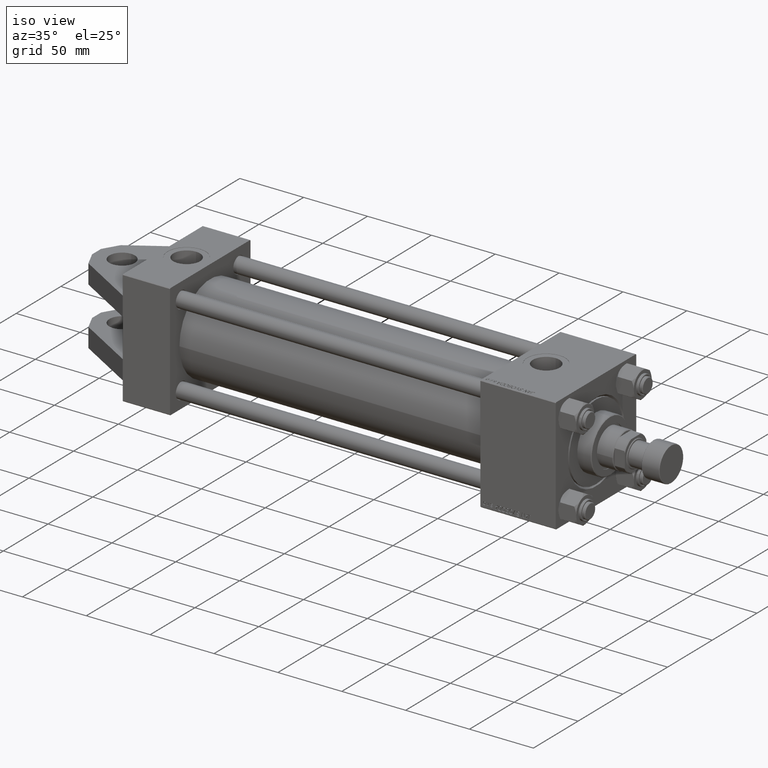
[diagram: clean part render]
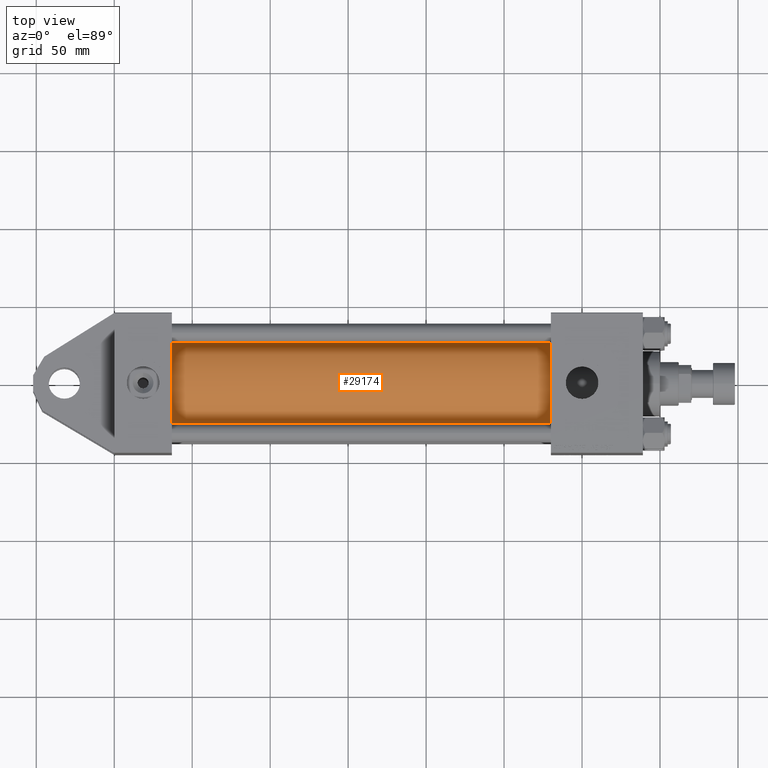
[diagram: tour spotlight — one face highlighted and labeled with its STEP entity id]
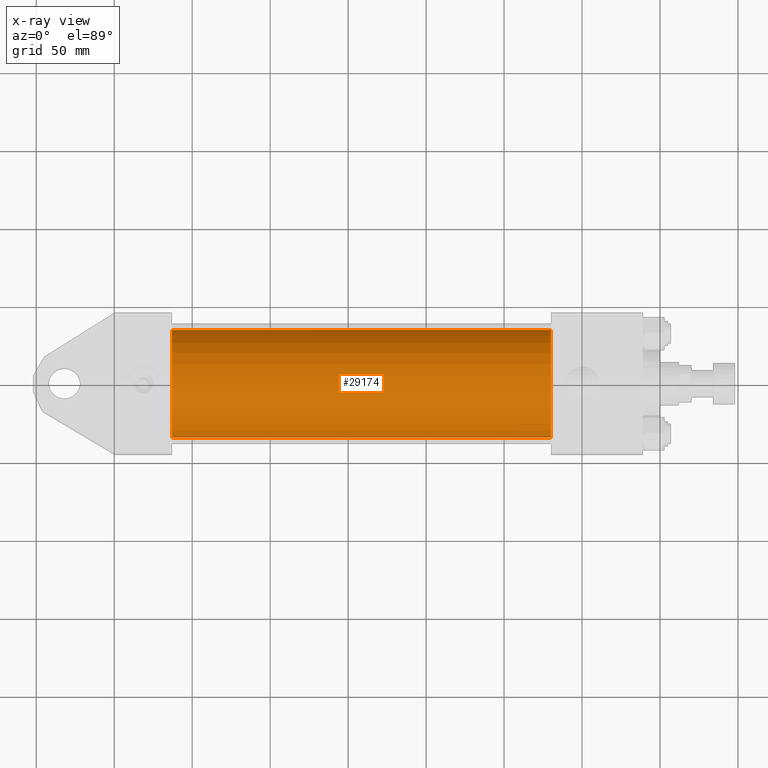
[diagram: x-ray of the same camera — body ghosted, this tour face saturated]
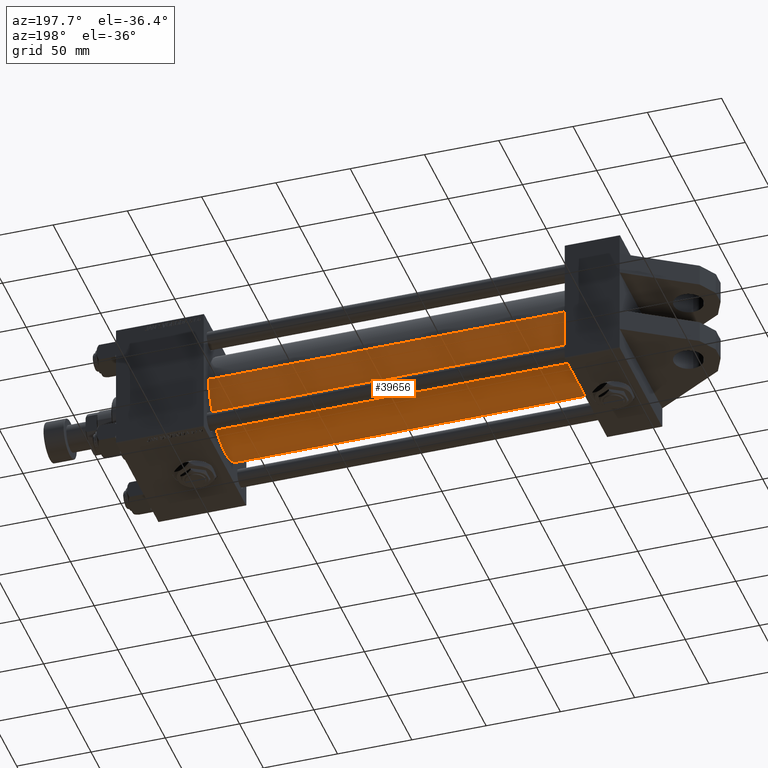
[diagram: tour spotlight — one face highlighted and labeled with its STEP entity id]
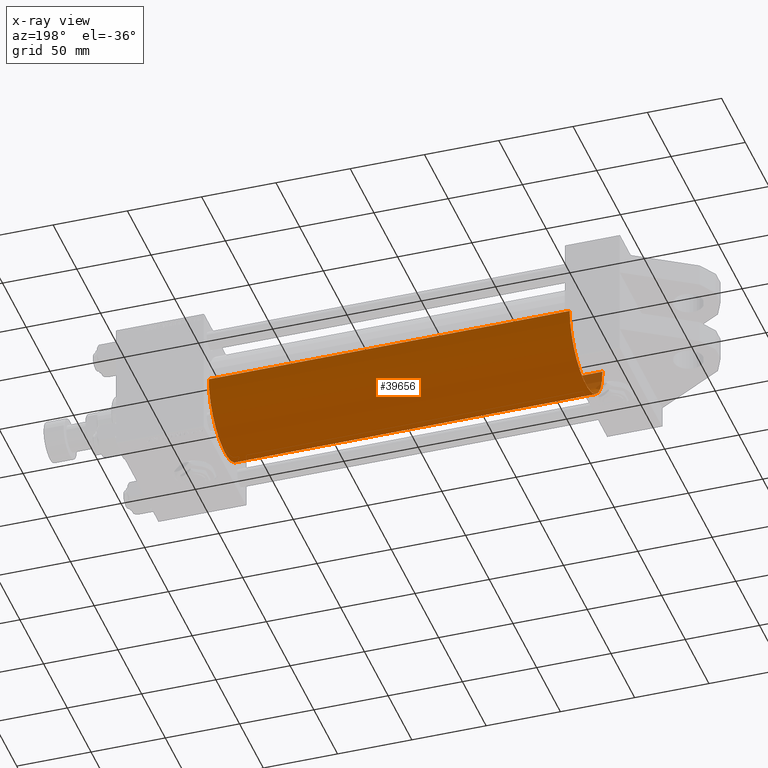
[diagram: x-ray of the same camera — body ghosted, this tour face saturated]
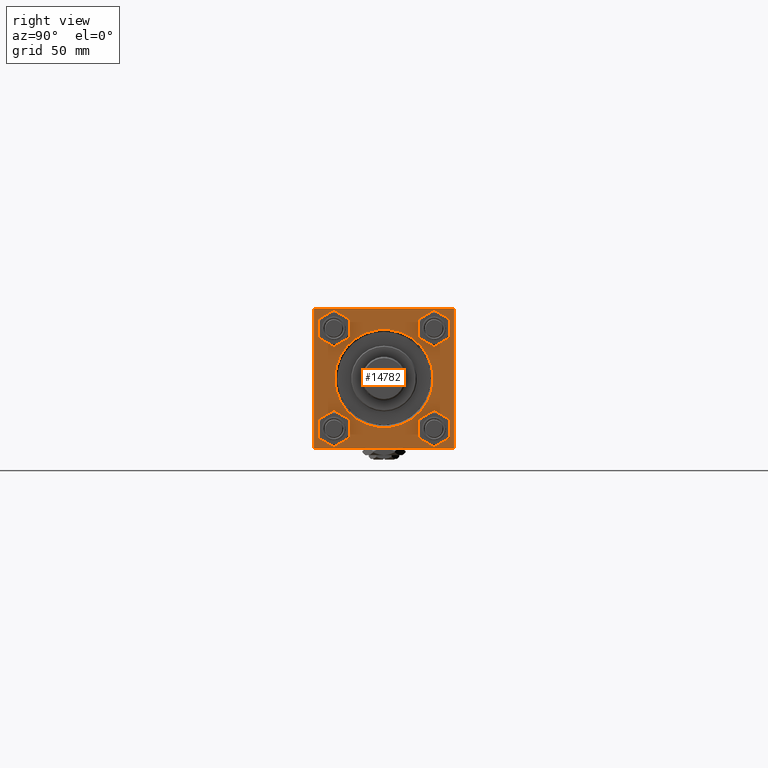
[diagram: tour spotlight — one face highlighted and labeled with its STEP entity id]
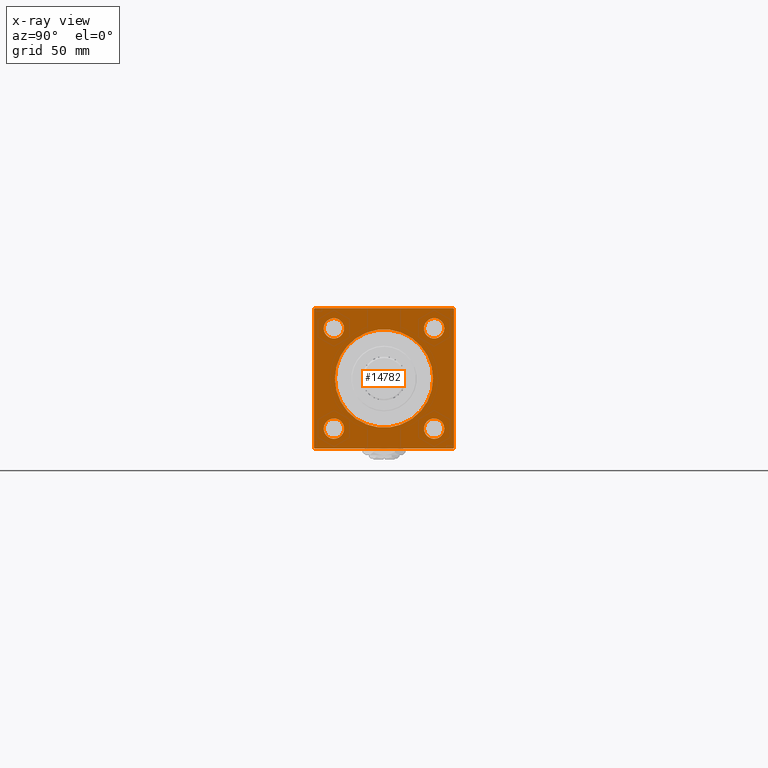
[diagram: x-ray of the same camera — body ghosted, this tour face saturated]
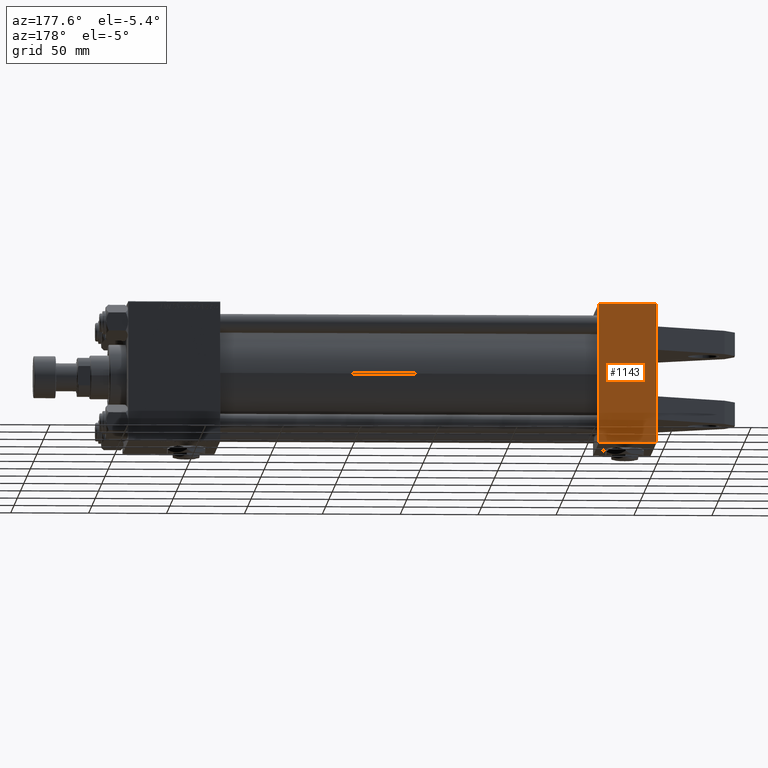
[diagram: tour spotlight — one face highlighted and labeled with its STEP entity id]
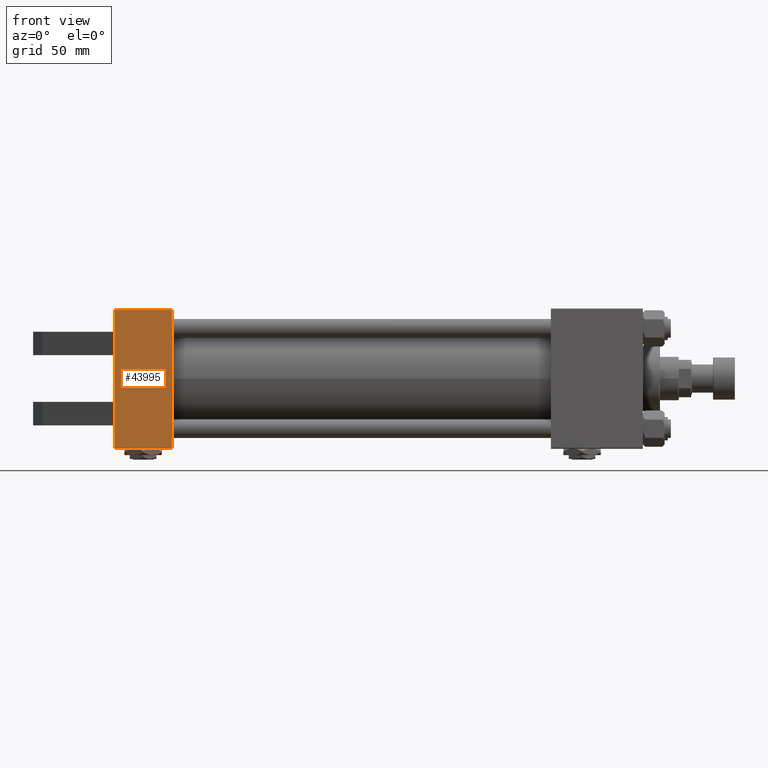
[diagram: tour spotlight — one face highlighted and labeled with its STEP entity id]
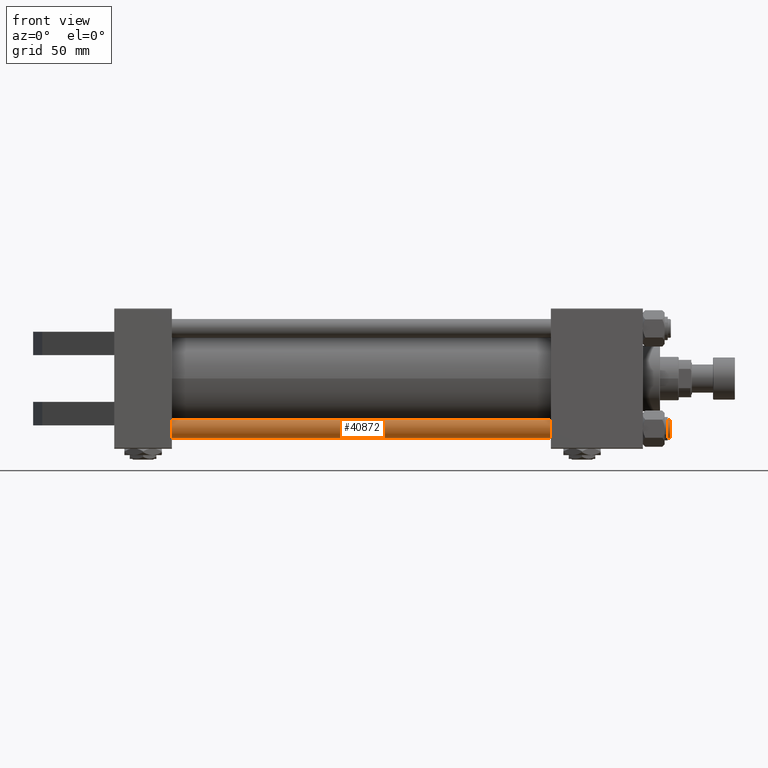
[diagram: tour spotlight — one face highlighted and labeled with its STEP entity id]
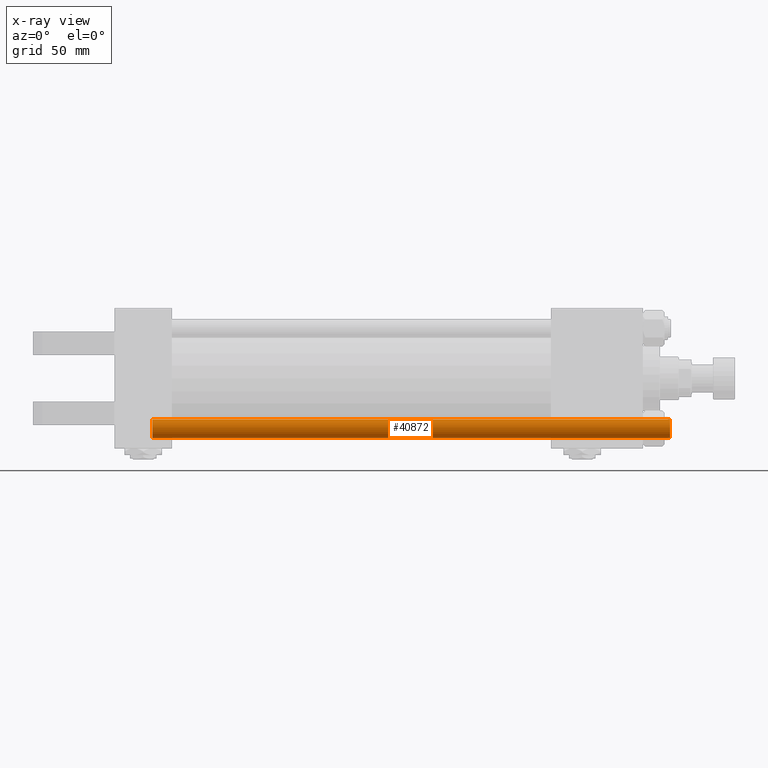
[diagram: x-ray of the same camera — body ghosted, this tour face saturated]
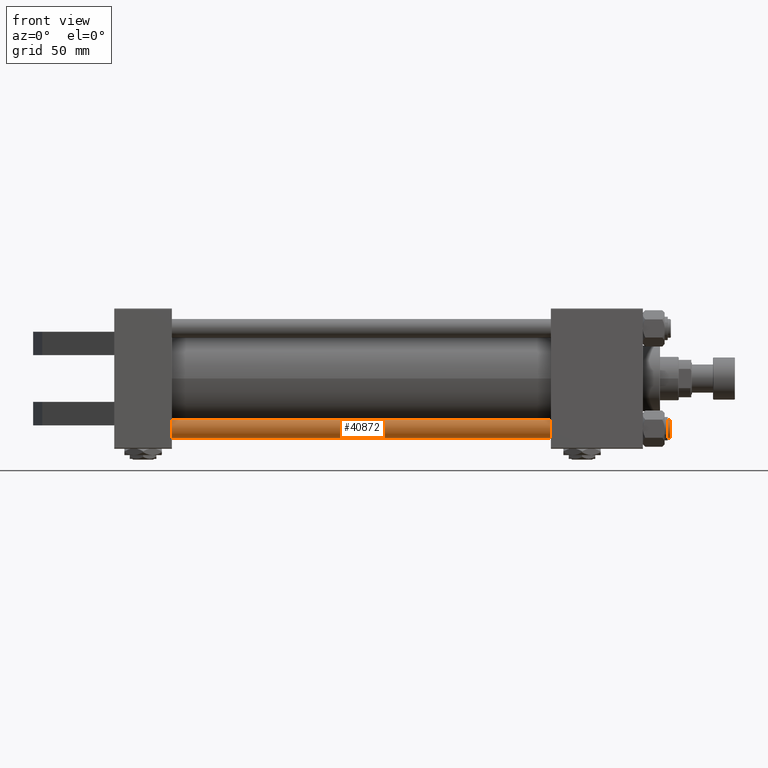
[diagram: tour spotlight — one face highlighted and labeled with its STEP entity id]
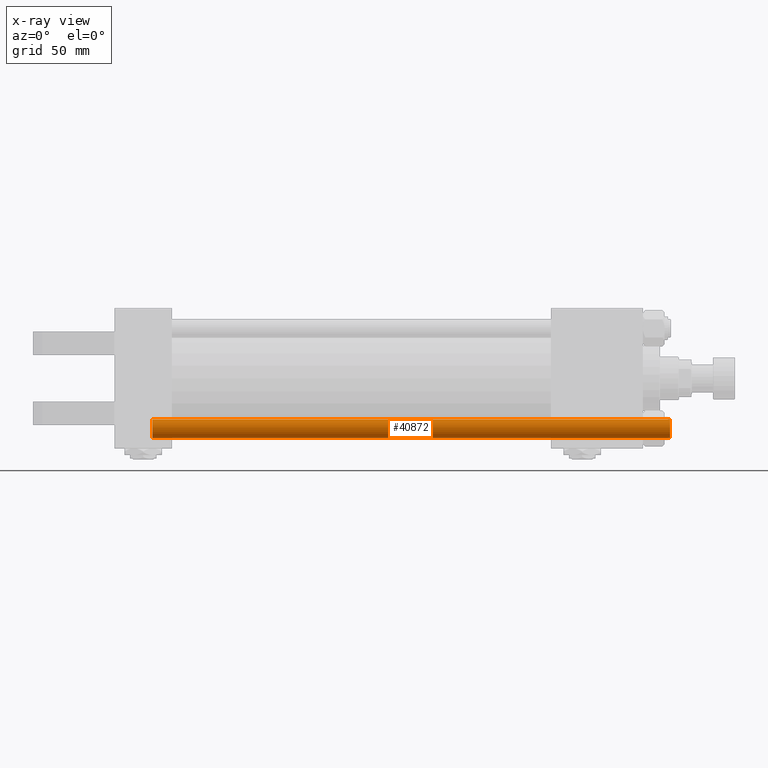
[diagram: x-ray of the same camera — body ghosted, this tour face saturated]
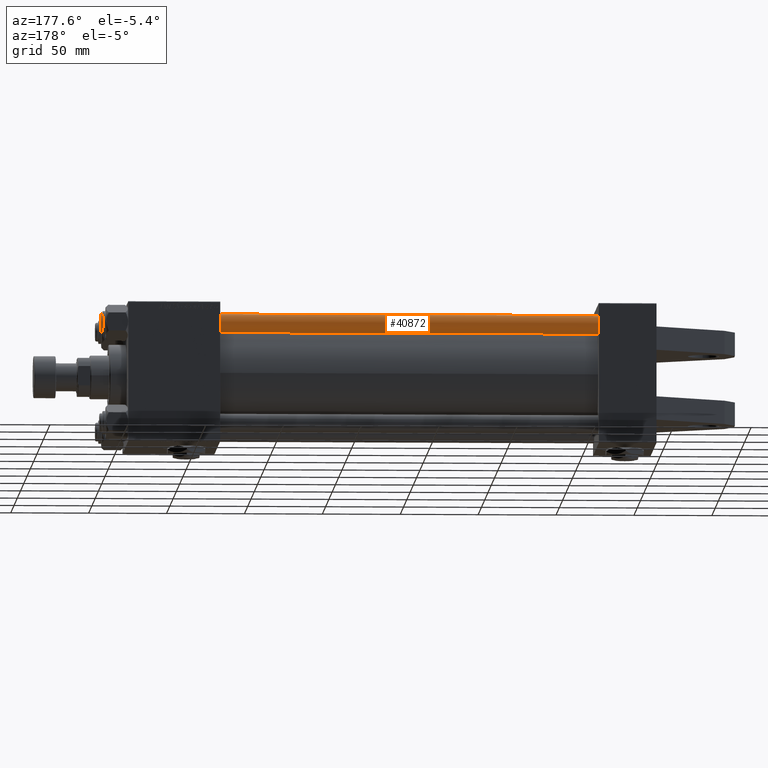
[diagram: tour spotlight — one face highlighted and labeled with its STEP entity id]
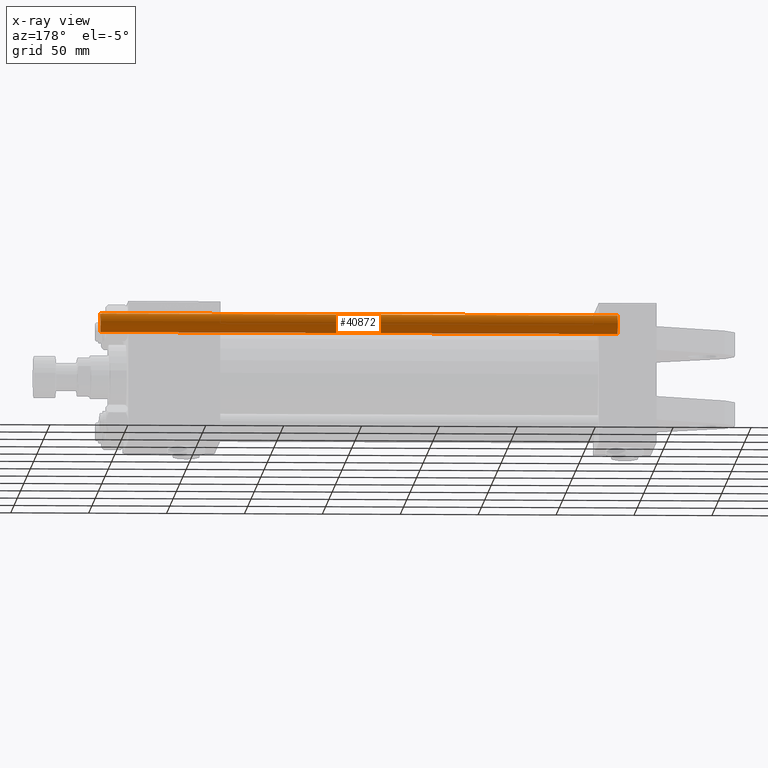
[diagram: x-ray of the same camera — body ghosted, this tour face saturated]
A machine part: a face-by-face anatomy tour. The part has 1244 B-rep faces; the first image is the clean iso view, then the 8 largest visible faces are spotlighted one at a time (largest first), each with its STEP entity span.

Face 1 — top view, entity #29174. An x-ray twin of the same camera follows (body ghosted, this face saturated) — the face is partly hidden behind the body. In plain terms, the highlighted cylindrical surface (partial cylindrical patch) has radius 34.5 mm, axis along (-1, -0, 0).
Definition (entity closure, byte-faithful):
#791 = DIRECTION ( 'NONE',  ( 0.000000000000000000, 0.000000000000000000, -1.000000000000000000 ) ) ;
#2138 = VERTEX_POINT ( 'NONE', #27262 ) ;
#3217 = DIRECTION ( 'NONE',  ( 0.000000000000000000, 0.000000000000000000, 1.000000000000000000 ) ) ;
#4023 = ORIENTED_EDGE ( 'NONE', *, *, #5790, .T. ) ;
#5790 = EDGE_CURVE ( 'NONE', #2138, #16478, #16448, .T. ) ;
#6614 = DIRECTION ( 'NONE',  ( 0.000000000000000000, 0.000000000000000000, 1.000000000000000000 ) ) ;
#7362 = EDGE_LOOP ( 'NONE', ( #14563, #42501, #44922, #4023 ) ) ;
#8729 = CARTESIAN_POINT ( 'NONE',  ( 279.9999999999999432, -3.469446951953614189E-15, 0.000000000000000000 ) ) ;
#8932 = LINE ( 'NONE', #46174, #31138 ) ;
#10066 = CIRCLE ( 'NONE', #10933, 34.49999999999999289 ) ;
#10933 = AXIS2_PLACEMENT_3D ( 'NONE', #8729, #13473, #791 ) ;
#13473 = DIRECTION ( 'NONE',  ( 1.000000000000000000, 0.000000000000000000, 0.000000000000000000 ) ) ;
#14556 = CARTESIAN_POINT ( 'NONE',  ( 37.00000000000000711, -3.469446951953614189E-15, 0.000000000000000000 ) ) ;
#14563 = ORIENTED_EDGE ( 'NONE', *, *, #47350, .F. ) ;
#16448 = CIRCLE ( 'NONE', #45997, 34.49999999999999289 ) ;
#16478 = VERTEX_POINT ( 'NONE', #19808 ) ;
#16851 = DIRECTION ( 'NONE',  ( -1.000000000000000000, -0.000000000000000000, -0.000000000000000000 ) ) ;
#19808 = CARTESIAN_POINT ( 'NONE',  ( 37.00000000000000711, 7.555845051047534515E-16, -34.49999999999999289 ) ) ;
#24826 = CARTESIAN_POINT ( 'NONE',  ( 279.9999999999999432, 7.555845051047534515E-16, -34.49999999999999289 ) ) ;
#26155 = DIRECTION ( 'NONE',  ( 1.000000000000000000, -0.000000000000000000, 0.000000000000000000 ) ) ;
#27262 = CARTESIAN_POINT ( 'NONE',  ( 37.00000000000000711, -3.469446951953614189E-15, 34.49999999999999289 ) ) ;
#28236 = CARTESIAN_POINT ( 'NONE',  ( 279.9999999999999432, -3.469446951953614189E-15, 34.49999999999999289 ) ) ;
#29174 = ADVANCED_FACE ( 'NONE', ( #30946 ), #51578, .T. ) ;
#30946 = FACE_OUTER_BOUND ( 'NONE', #7362, .T. ) ;
#31138 = VECTOR ( 'NONE', #16851, 1000.000000000000000 ) ;
#31215 = DIRECTION ( 'NONE',  ( -1.000000000000000000, -0.000000000000000000, -0.000000000000000000 ) ) ;
#31489 = VERTEX_POINT ( 'NONE', #24826 ) ;
#37046 = CARTESIAN_POINT ( 'NONE',  ( 279.9999999999999432, -3.469446951953614189E-15, 34.49999999999999289 ) ) ;
#38615 = CARTESIAN_POINT ( 'NONE',  ( 279.9999999999999432, -3.469446951953614189E-15, 0.000000000000000000 ) ) ;
#39433 = VECTOR ( 'NONE', #43626, 1000.000000000000000 ) ;
#42501 = ORIENTED_EDGE ( 'NONE', *, *, #48880, .F. ) ;
#43626 = DIRECTION ( 'NONE',  ( -1.000000000000000000, -0.000000000000000000, -0.000000000000000000 ) ) ;
#44224 = EDGE_CURVE ( 'NONE', #50751, #2138, #48105, .T. ) ;
#44922 = ORIENTED_EDGE ( 'NONE', *, *, #44224, .T. ) ;
#45997 = AXIS2_PLACEMENT_3D ( 'NONE', #14556, #26155, #6614 ) ;
#46174 = CARTESIAN_POINT ( 'NONE',  ( 279.9999999999999432, 7.555845051047534515E-16, -34.49999999999999289 ) ) ;
#47350 = EDGE_CURVE ( 'NONE', #31489, #16478, #8932, .T. ) ;
#48105 = LINE ( 'NONE', #28236, #39433 ) ;
#48880 = EDGE_CURVE ( 'NONE', #50751, #31489, #10066, .T. ) ;
#50751 = VERTEX_POINT ( 'NONE', #37046 ) ;
#51578 = CYLINDRICAL_SURFACE ( 'NONE', #51721, 34.49999999999999289 ) ;
#51721 = AXIS2_PLACEMENT_3D ( 'NONE', #38615, #31215, #3217 ) ;

Face 2 — auxiliary view, entity #39656. An x-ray twin of the same camera follows (body ghosted, this face saturated) — the face is partly hidden behind the body. In plain terms, the highlighted cylindrical surface (partial cylindrical patch) has radius 34.5 mm, axis along (-1, -0, 0).
Definition (entity closure, byte-faithful):
#205 = AXIS2_PLACEMENT_3D ( 'NONE', #7308, #27101, #39792 ) ;
#1190 = CYLINDRICAL_SURFACE ( 'NONE', #4651, 34.49999999999999289 ) ;
#2138 = VERTEX_POINT ( 'NONE', #27262 ) ;
#4651 = AXIS2_PLACEMENT_3D ( 'NONE', #13350, #50081, #29442 ) ;
#5152 = FACE_OUTER_BOUND ( 'NONE', #16872, .T. ) ;
#7308 = CARTESIAN_POINT ( 'NONE',  ( 37.00000000000000711, -3.469446951953614189E-15, 0.000000000000000000 ) ) ;
#8932 = LINE ( 'NONE', #46174, #31138 ) ;
#13350 = CARTESIAN_POINT ( 'NONE',  ( 279.9999999999999432, -3.469446951953614189E-15, 0.000000000000000000 ) ) ;
#16478 = VERTEX_POINT ( 'NONE', #19808 ) ;
#16851 = DIRECTION ( 'NONE',  ( -1.000000000000000000, -0.000000000000000000, -0.000000000000000000 ) ) ;
#16872 = EDGE_LOOP ( 'NONE', ( #35284, #47193, #23881, #39725 ) ) ;
#19808 = CARTESIAN_POINT ( 'NONE',  ( 37.00000000000000711, 7.555845051047534515E-16, -34.49999999999999289 ) ) ;
#23881 = ORIENTED_EDGE ( 'NONE', *, *, #29383, .T. ) ;
#24215 = AXIS2_PLACEMENT_3D ( 'NONE', #29485, #46162, #46426 ) ;
#24826 = CARTESIAN_POINT ( 'NONE',  ( 279.9999999999999432, 7.555845051047534515E-16, -34.49999999999999289 ) ) ;
#27101 = DIRECTION ( 'NONE',  ( 1.000000000000000000, -0.000000000000000000, 0.000000000000000000 ) ) ;
#27262 = CARTESIAN_POINT ( 'NONE',  ( 37.00000000000000711, -3.469446951953614189E-15, 34.49999999999999289 ) ) ;
#28236 = CARTESIAN_POINT ( 'NONE',  ( 279.9999999999999432, -3.469446951953614189E-15, 34.49999999999999289 ) ) ;
#29383 = EDGE_CURVE ( 'NONE', #16478, #2138, #34802, .T. ) ;
#29442 = DIRECTION ( 'NONE',  ( 0.000000000000000000, 0.000000000000000000, 1.000000000000000000 ) ) ;
#29485 = CARTESIAN_POINT ( 'NONE',  ( 279.9999999999999432, -3.469446951953614189E-15, 0.000000000000000000 ) ) ;
#31138 = VECTOR ( 'NONE', #16851, 1000.000000000000000 ) ;
#31489 = VERTEX_POINT ( 'NONE', #24826 ) ;
#34802 = CIRCLE ( 'NONE', #205, 34.49999999999999289 ) ;
#35284 = ORIENTED_EDGE ( 'NONE', *, *, #44729, .F. ) ;
#37046 = CARTESIAN_POINT ( 'NONE',  ( 279.9999999999999432, -3.469446951953614189E-15, 34.49999999999999289 ) ) ;
#39433 = VECTOR ( 'NONE', #43626, 1000.000000000000000 ) ;
#39656 = ADVANCED_FACE ( 'NONE', ( #5152 ), #1190, .T. ) ;
#39725 = ORIENTED_EDGE ( 'NONE', *, *, #44224, .F. ) ;
#39792 = DIRECTION ( 'NONE',  ( 0.000000000000000000, 0.000000000000000000, 1.000000000000000000 ) ) ;
#42842 = CIRCLE ( 'NONE', #24215, 34.49999999999999289 ) ;
#43626 = DIRECTION ( 'NONE',  ( -1.000000000000000000, -0.000000000000000000, -0.000000000000000000 ) ) ;
#44224 = EDGE_CURVE ( 'NONE', #50751, #2138, #48105, .T. ) ;
#44729 = EDGE_CURVE ( 'NONE', #31489, #50751, #42842, .T. ) ;
#46162 = DIRECTION ( 'NONE',  ( 1.000000000000000000, 0.000000000000000000, 0.000000000000000000 ) ) ;
#46174 = CARTESIAN_POINT ( 'NONE',  ( 279.9999999999999432, 7.555845051047534515E-16, -34.49999999999999289 ) ) ;
#46426 = DIRECTION ( 'NONE',  ( 0.000000000000000000, 0.000000000000000000, -1.000000000000000000 ) ) ;
#47193 = ORIENTED_EDGE ( 'NONE', *, *, #47350, .T. ) ;
#47350 = EDGE_CURVE ( 'NONE', #31489, #16478, #8932, .T. ) ;
#48105 = LINE ( 'NONE', #28236, #39433 ) ;
#50081 = DIRECTION ( 'NONE',  ( -1.000000000000000000, -0.000000000000000000, -0.000000000000000000 ) ) ;
#50751 = VERTEX_POINT ( 'NONE', #37046 ) ;

Face 3 — right view, entity #14782. An x-ray twin of the same camera follows (body ghosted, this face saturated) — the face is partly hidden behind the body. In plain terms, the highlighted planar face has unit normal (-1, 0, -0).
Definition (entity closure, byte-faithful):
#250 = ORIENTED_EDGE ( 'NONE', *, *, #29041, .T. ) ;
#386 = AXIS2_PLACEMENT_3D ( 'NONE', #51218, #34823, #35344 ) ;
#1286 = CARTESIAN_POINT ( 'NONE',  ( 338.9999999999999432, 32.14999999999999147, 38.65000000000007674 ) ) ;
#1337 = ORIENTED_EDGE ( 'NONE', *, *, #7307, .F. ) ;
#1888 = CARTESIAN_POINT ( 'NONE',  ( 338.9999999999999432, -44.49999999999995737, -45.00000000000000000 ) ) ;
#1891 = DIRECTION ( 'NONE',  ( -1.000000000000000000, -0.000000000000000000, -0.000000000000000000 ) ) ;
#2545 = ORIENTED_EDGE ( 'NONE', *, *, #6341, .T. ) ;
#2870 = CIRCLE ( 'NONE', #21396, 6.500000000000061284 ) ;
#2874 = EDGE_LOOP ( 'NONE', ( #35338, #24083, #24510, #40970, #1337, #45740, #26732, #52103 ) ) ;
#3272 = EDGE_CURVE ( 'NONE', #48555, #4295, #12270, .T. ) ;
#3709 = DIRECTION ( 'NONE',  ( 0.000000000000000000, 0.7071067811865525687, -0.7071067811865425767 ) ) ;
#3846 = LINE ( 'NONE', #32619, #24125 ) ;
#3860 = VECTOR ( 'NONE', #24014, 1000.000000000000000 ) ;
#4084 = VERTEX_POINT ( 'NONE', #32440 ) ;
#4206 = VERTEX_POINT ( 'NONE', #6254 ) ;
#4295 = VERTEX_POINT ( 'NONE', #39009 ) ;
#4518 = DIRECTION ( 'NONE',  ( -1.000000000000000000, -0.000000000000000000, -0.000000000000000000 ) ) ;
#5158 = EDGE_LOOP ( 'NONE', ( #2545, #23827 ) ) ;
#5391 = LINE ( 'NONE', #20999, #29394 ) ;
#5440 = CIRCLE ( 'NONE', #386, 6.500000000000061284 ) ;
#5711 = CARTESIAN_POINT ( 'NONE',  ( 338.9999999999999432, -45.00000000000000000, 44.50000000000004263 ) ) ;
#5780 = AXIS2_PLACEMENT_3D ( 'NONE', #10100, #1891, #46296 ) ;
#5931 = DIRECTION ( 'NONE',  ( -1.000000000000000000, -0.000000000000000000, -0.000000000000000000 ) ) ;
#6254 = CARTESIAN_POINT ( 'NONE',  ( 338.9999999999999432, -44.99999999999999289, -44.49999999999997158 ) ) ;
#6341 = EDGE_CURVE ( 'NONE', #33514, #6726, #24910, .T. ) ;
#6726 = VERTEX_POINT ( 'NONE', #29717 ) ;
#7194 = FACE_BOUND ( 'NONE', #32272, .T. ) ;
#7201 = VECTOR ( 'NONE', #42601, 1000.000000000000114 ) ;
#7307 = EDGE_CURVE ( 'NONE', #28812, #10989, #35925, .T. ) ;
#7667 = VECTOR ( 'NONE', #13377, 1000.000000000000114 ) ;
#7744 = VERTEX_POINT ( 'NONE', #28040 ) ;
#8615 = DIRECTION ( 'NONE',  ( 0.000000000000000000, 0.000000000000000000, 1.000000000000000000 ) ) ;
#8724 = EDGE_CURVE ( 'NONE', #7744, #30067, #3846, .T. ) ;
#9773 = VERTEX_POINT ( 'NONE', #35077 ) ;
#9810 = LINE ( 'NONE', #21163, #12707 ) ;
#10100 = CARTESIAN_POINT ( 'NONE',  ( 338.9999999999999432, 0.000000000000000000, 0.000000000000000000 ) ) ;
#10989 = VERTEX_POINT ( 'NONE', #42967 ) ;
#10991 = VECTOR ( 'NONE', #3709, 999.9999999999998863 ) ;
#11414 = CARTESIAN_POINT ( 'NONE',  ( 338.9999999999999432, 0.000000000000000000, 0.000000000000000000 ) ) ;
#11699 = ORIENTED_EDGE ( 'NONE', *, *, #27048, .T. ) ;
#12270 = CIRCLE ( 'NONE', #51963, 6.500000000000061284 ) ;
#12707 = VECTOR ( 'NONE', #28806, 1000.000000000000000 ) ;
#12903 = EDGE_LOOP ( 'NONE', ( #47560, #21179 ) ) ;
#13377 = DIRECTION ( 'NONE',  ( 0.000000000000000000, -0.7071067811865474617, 0.7071067811865474617 ) ) ;
#13454 = VERTEX_POINT ( 'NONE', #37500 ) ;
#13531 = CARTESIAN_POINT ( 'NONE',  ( 338.9999999999999432, -32.14999999999999147, 32.14999999999999147 ) ) ;
#13861 = EDGE_CURVE ( 'NONE', #30475, #4206, #5391, .T. ) ;
#14255 = CIRCLE ( 'NONE', #5780, 31.50000000000013856 ) ;
#14782 = ADVANCED_FACE ( 'NONE', ( #22507, #42871, #30438, #35195, #7194, #43394 ), #47619, .F. ) ;
#15172 = CARTESIAN_POINT ( 'NONE',  ( 338.9999999999999432, 45.00000000000001421, 44.49999999999994316 ) ) ;
#15773 = DIRECTION ( 'NONE',  ( 0.000000000000000000, 0.000000000000000000, 1.000000000000000000 ) ) ;
#15861 = LINE ( 'NONE', #31966, #10991 ) ;
#16408 = LINE ( 'NONE', #28800, #41883 ) ;
#16746 = AXIS2_PLACEMENT_3D ( 'NONE', #11414, #46583, #35458 ) ;
#17154 = CIRCLE ( 'NONE', #46699, 6.500000000000061284 ) ;
#17735 = CARTESIAN_POINT ( 'NONE',  ( 338.9999999999999432, 32.14999999999999147, -38.65000000000006253 ) ) ;
#17916 = CARTESIAN_POINT ( 'NONE',  ( 338.9999999999999432, 32.14999999999999147, -32.15000000000000568 ) ) ;
#17958 = CIRCLE ( 'NONE', #39859, 31.50000000000013856 ) ;
#18273 = ORIENTED_EDGE ( 'NONE', *, *, #32171, .T. ) ;
#18640 = VERTEX_POINT ( 'NONE', #36597 ) ;
#18685 = EDGE_CURVE ( 'NONE', #13454, #9773, #29553, .T. ) ;
#18811 = CARTESIAN_POINT ( 'NONE',  ( 338.9999999999999432, -44.50000000000002842, 44.99999999999998579 ) ) ;
#19610 = CIRCLE ( 'NONE', #24671, 6.500000000000061284 ) ;
#19633 = VERTEX_POINT ( 'NONE', #1286 ) ;
#20530 = EDGE_CURVE ( 'NONE', #4206, #21406, #15861, .T. ) ;
#20999 = CARTESIAN_POINT ( 'NONE',  ( 338.9999999999999432, -45.00000000000000000, 44.99999999999998579 ) ) ;
#21163 = CARTESIAN_POINT ( 'NONE',  ( 338.9999999999999432, 45.00000000000001421, -45.00000000000000000 ) ) ;
#21179 = ORIENTED_EDGE ( 'NONE', *, *, #38550, .T. ) ;
#21396 = AXIS2_PLACEMENT_3D ( 'NONE', #24579, #4518, #34087 ) ;
#21406 = VERTEX_POINT ( 'NONE', #1888 ) ;
#21532 = CARTESIAN_POINT ( 'NONE',  ( 338.9999999999999432, 32.14999999999999147, -32.15000000000000568 ) ) ;
#21711 = DIRECTION ( 'NONE',  ( 0.000000000000000000, 0.000000000000000000, 1.000000000000000000 ) ) ;
#21977 = DIRECTION ( 'NONE',  ( -1.000000000000000000, -0.000000000000000000, -0.000000000000000000 ) ) ;
#22302 = VERTEX_POINT ( 'NONE', #40001 ) ;
#22507 = FACE_BOUND ( 'NONE', #48030, .T. ) ;
#22561 = EDGE_CURVE ( 'NONE', #22302, #21406, #9810, .T. ) ;
#22731 = CARTESIAN_POINT ( 'NONE',  ( 338.9999999999999432, -32.14999999999999147, 32.14999999999999147 ) ) ;
#23111 = EDGE_CURVE ( 'NONE', #28812, #7744, #33186, .T. ) ;
#23827 = ORIENTED_EDGE ( 'NONE', *, *, #52253, .T. ) ;
#24014 = DIRECTION ( 'NONE',  ( 0.000000000000000000, 0.000000000000000000, -1.000000000000000000 ) ) ;
#24083 = ORIENTED_EDGE ( 'NONE', *, *, #20530, .T. ) ;
#24125 = VECTOR ( 'NONE', #44533, 1000.000000000000000 ) ;
#24510 = ORIENTED_EDGE ( 'NONE', *, *, #22561, .F. ) ;
#24579 = CARTESIAN_POINT ( 'NONE',  ( 338.9999999999999432, 32.14999999999999147, 32.15000000000000568 ) ) ;
#24671 = AXIS2_PLACEMENT_3D ( 'NONE', #13531, #21977, #21711 ) ;
#24910 = CIRCLE ( 'NONE', #32502, 6.500000000000054179 ) ;
#26507 = CARTESIAN_POINT ( 'NONE',  ( 338.9999999999999432, -32.14999999999999147, 25.64999999999993108 ) ) ;
#26732 = ORIENTED_EDGE ( 'NONE', *, *, #8724, .T. ) ;
#27048 = EDGE_CURVE ( 'NONE', #46804, #4084, #17958, .T. ) ;
#27472 = DIRECTION ( 'NONE',  ( -1.000000000000000000, -0.000000000000000000, -0.000000000000000000 ) ) ;
#28040 = CARTESIAN_POINT ( 'NONE',  ( 338.9999999999999432, 44.49999999999995737, 45.00000000000000000 ) ) ;
#28800 = CARTESIAN_POINT ( 'NONE',  ( 338.9999999999999432, -45.00000000000000000, 44.50000000000004263 ) ) ;
#28806 = DIRECTION ( 'NONE',  ( 0.000000000000000000, -1.000000000000000000, 0.000000000000000000 ) ) ;
#28812 = VERTEX_POINT ( 'NONE', #15172 ) ;
#29041 = EDGE_CURVE ( 'NONE', #4295, #48555, #19610, .T. ) ;
#29394 = VECTOR ( 'NONE', #45322, 1000.000000000000000 ) ;
#29553 = CIRCLE ( 'NONE', #48144, 6.500000000000061284 ) ;
#29717 = CARTESIAN_POINT ( 'NONE',  ( 338.9999999999999432, 32.14999999999999147, -25.64999999999994884 ) ) ;
#29955 = DIRECTION ( 'NONE',  ( -1.000000000000000000, -0.000000000000000000, -0.000000000000000000 ) ) ;
#30067 = VERTEX_POINT ( 'NONE', #18811 ) ;
#30438 = FACE_BOUND ( 'NONE', #12903, .T. ) ;
#30475 = VERTEX_POINT ( 'NONE', #5711 ) ;
#31966 = CARTESIAN_POINT ( 'NONE',  ( 338.9999999999999432, -44.49999999999998579, -45.00000000000000000 ) ) ;
#32171 = EDGE_CURVE ( 'NONE', #9773, #13454, #17154, .T. ) ;
#32272 = EDGE_LOOP ( 'NONE', ( #11699, #50518 ) ) ;
#32412 = EDGE_CURVE ( 'NONE', #18640, #19633, #2870, .T. ) ;
#32440 = CARTESIAN_POINT ( 'NONE',  ( 338.9999999999999432, 3.857637417314179255E-15, 31.50000000000013856 ) ) ;
#32502 = AXIS2_PLACEMENT_3D ( 'NONE', #17916, #50154, #15773 ) ;
#32522 = DIRECTION ( 'NONE',  ( -0.000000000000000000, -0.7071067811865474617, -0.7071067811865474617 ) ) ;
#32619 = CARTESIAN_POINT ( 'NONE',  ( 338.9999999999999432, 45.00000000000001421, 45.00000000000000000 ) ) ;
#32850 = DIRECTION ( 'NONE',  ( -1.000000000000000000, -0.000000000000000000, -0.000000000000000000 ) ) ;
#33186 = LINE ( 'NONE', #36630, #7667 ) ;
#33419 = CARTESIAN_POINT ( 'NONE',  ( 338.9999999999999432, -32.15000000000001279, -32.15000000000000568 ) ) ;
#33514 = VERTEX_POINT ( 'NONE', #17735 ) ;
#33651 = CIRCLE ( 'NONE', #45507, 6.500000000000054179 ) ;
#33676 = DIRECTION ( 'NONE',  ( 0.000000000000000000, 0.000000000000000000, 1.000000000000000000 ) ) ;
#34087 = DIRECTION ( 'NONE',  ( 0.000000000000000000, 0.000000000000000000, 1.000000000000000000 ) ) ;
#34235 = ORIENTED_EDGE ( 'NONE', *, *, #3272, .T. ) ;
#34823 = DIRECTION ( 'NONE',  ( -1.000000000000000000, -0.000000000000000000, -0.000000000000000000 ) ) ;
#35077 = CARTESIAN_POINT ( 'NONE',  ( 338.9999999999999432, -32.15000000000001279, -38.65000000000006963 ) ) ;
#35195 = FACE_BOUND ( 'NONE', #50014, .T. ) ;
#35338 = ORIENTED_EDGE ( 'NONE', *, *, #13861, .T. ) ;
#35344 = DIRECTION ( 'NONE',  ( 0.000000000000000000, 0.000000000000000000, 1.000000000000000000 ) ) ;
#35458 = DIRECTION ( 'NONE',  ( -0.000000000000000000, 0.000000000000000000, 1.000000000000000000 ) ) ;
#35925 = LINE ( 'NONE', #44128, #3860 ) ;
#36597 = CARTESIAN_POINT ( 'NONE',  ( 338.9999999999999432, 32.14999999999999147, 25.64999999999994529 ) ) ;
#36630 = CARTESIAN_POINT ( 'NONE',  ( 338.9999999999999432, 44.49999999999995737, 45.00000000000000000 ) ) ;
#37500 = CARTESIAN_POINT ( 'NONE',  ( 338.9999999999999432, -32.15000000000001279, -25.64999999999994529 ) ) ;
#38550 = EDGE_CURVE ( 'NONE', #19633, #18640, #5440, .T. ) ;
#38624 = CARTESIAN_POINT ( 'NONE',  ( 338.9999999999999432, 45.00000000000001421, -44.50000000000000000 ) ) ;
#38856 = DIRECTION ( 'NONE',  ( 0.000000000000000000, 0.000000000000000000, 1.000000000000000000 ) ) ;
#38875 = CARTESIAN_POINT ( 'NONE',  ( 338.9999999999999432, 0.000000000000000000, -31.50000000000013856 ) ) ;
#38968 = EDGE_CURVE ( 'NONE', #22302, #10989, #42867, .T. ) ;
#39009 = CARTESIAN_POINT ( 'NONE',  ( 338.9999999999999432, -32.14999999999999147, 38.65000000000006253 ) ) ;
#39859 = AXIS2_PLACEMENT_3D ( 'NONE', #46376, #5931, #45845 ) ;
#40001 = CARTESIAN_POINT ( 'NONE',  ( 338.9999999999999432, 44.50000000000001421, -45.00000000000000000 ) ) ;
#40970 = ORIENTED_EDGE ( 'NONE', *, *, #38968, .T. ) ;
#41365 = DIRECTION ( 'NONE',  ( -1.000000000000000000, -0.000000000000000000, -0.000000000000000000 ) ) ;
#41883 = VECTOR ( 'NONE', #32522, 1000.000000000000114 ) ;
#42337 = EDGE_CURVE ( 'NONE', #30067, #30475, #16408, .T. ) ;
#42601 = DIRECTION ( 'NONE',  ( -0.000000000000000000, 0.7071067811865474617, 0.7071067811865474617 ) ) ;
#42867 = LINE ( 'NONE', #38624, #7201 ) ;
#42871 = FACE_BOUND ( 'NONE', #5158, .T. ) ;
#42967 = CARTESIAN_POINT ( 'NONE',  ( 338.9999999999999432, 45.00000000000001421, -44.49999999999997158 ) ) ;
#43262 = ORIENTED_EDGE ( 'NONE', *, *, #18685, .T. ) ;
#43394 = FACE_OUTER_BOUND ( 'NONE', #2874, .T. ) ;
#44128 = CARTESIAN_POINT ( 'NONE',  ( 338.9999999999999432, 45.00000000000001421, 45.00000000000000000 ) ) ;
#44533 = DIRECTION ( 'NONE',  ( 0.000000000000000000, -1.000000000000000000, -1.541976423090495140E-16 ) ) ;
#45279 = DIRECTION ( 'NONE',  ( 0.000000000000000000, 0.000000000000000000, 1.000000000000000000 ) ) ;
#45322 = DIRECTION ( 'NONE',  ( 0.000000000000000000, 7.709882115452478166E-17, -1.000000000000000000 ) ) ;
#45507 = AXIS2_PLACEMENT_3D ( 'NONE', #21532, #41365, #8615 ) ;
#45740 = ORIENTED_EDGE ( 'NONE', *, *, #23111, .T. ) ;
#45845 = DIRECTION ( 'NONE',  ( 0.000000000000000000, 0.000000000000000000, 1.000000000000000000 ) ) ;
#46296 = DIRECTION ( 'NONE',  ( 0.000000000000000000, 0.000000000000000000, 1.000000000000000000 ) ) ;
#46376 = CARTESIAN_POINT ( 'NONE',  ( 338.9999999999999432, 0.000000000000000000, 0.000000000000000000 ) ) ;
#46583 = DIRECTION ( 'NONE',  ( -1.000000000000000000, 0.000000000000000000, -0.000000000000000000 ) ) ;
#46699 = AXIS2_PLACEMENT_3D ( 'NONE', #49239, #32850, #45279 ) ;
#46804 = VERTEX_POINT ( 'NONE', #38875 ) ;
#47560 = ORIENTED_EDGE ( 'NONE', *, *, #32412, .T. ) ;
#47619 = PLANE ( 'NONE',  #16746 ) ;
#47948 = EDGE_CURVE ( 'NONE', #4084, #46804, #14255, .T. ) ;
#48030 = EDGE_LOOP ( 'NONE', ( #18273, #43262 ) ) ;
#48144 = AXIS2_PLACEMENT_3D ( 'NONE', #33419, #29955, #33676 ) ;
#48555 = VERTEX_POINT ( 'NONE', #26507 ) ;
#49239 = CARTESIAN_POINT ( 'NONE',  ( 338.9999999999999432, -32.15000000000001279, -32.15000000000000568 ) ) ;
#50014 = EDGE_LOOP ( 'NONE', ( #34235, #250 ) ) ;
#50154 = DIRECTION ( 'NONE',  ( -1.000000000000000000, -0.000000000000000000, -0.000000000000000000 ) ) ;
#50518 = ORIENTED_EDGE ( 'NONE', *, *, #47948, .T. ) ;
#51218 = CARTESIAN_POINT ( 'NONE',  ( 338.9999999999999432, 32.14999999999999147, 32.15000000000000568 ) ) ;
#51963 = AXIS2_PLACEMENT_3D ( 'NONE', #22731, #27472, #38856 ) ;
#52103 = ORIENTED_EDGE ( 'NONE', *, *, #42337, .T. ) ;
#52253 = EDGE_CURVE ( 'NONE', #6726, #33514, #33651, .T. ) ;

Face 4 — auxiliary view, entity #1143. In plain terms, the highlighted planar face has unit normal (0, -1, -0).
Definition (entity closure, byte-faithful):
#692 = ORIENTED_EDGE ( 'NONE', *, *, #9333, .F. ) ;
#1143 = ADVANCED_FACE ( 'NONE', ( #47559 ), #2909, .F. ) ;
#1165 = CARTESIAN_POINT ( 'NONE',  ( 0.000000000000000000, 30.00000000000000355, 45.00000000000001421 ) ) ;
#2793 = EDGE_CURVE ( 'NONE', #43543, #7677, #9094, .T. ) ;
#2909 = PLANE ( 'NONE',  #6313 ) ;
#3518 = CARTESIAN_POINT ( 'NONE',  ( 37.00000000000000000, -44.49999999999995737, 45.00000000000000000 ) ) ;
#4024 = CARTESIAN_POINT ( 'NONE',  ( 0.000000000000000000, 44.49999999999998579, 45.00000000000001421 ) ) ;
#4271 = ORIENTED_EDGE ( 'NONE', *, *, #23688, .T. ) ;
#6313 = AXIS2_PLACEMENT_3D ( 'NONE', #15058, #15834, #31171 ) ;
#7677 = VERTEX_POINT ( 'NONE', #3518 ) ;
#9014 = ORIENTED_EDGE ( 'NONE', *, *, #17562, .T. ) ;
#9094 = LINE ( 'NONE', #50043, #24097 ) ;
#9333 = EDGE_CURVE ( 'NONE', #35993, #24277, #51600, .T. ) ;
#13251 = CARTESIAN_POINT ( 'NONE',  ( 0.000000000000000000, -44.49999999999995737, 45.00000000000000000 ) ) ;
#13607 = VECTOR ( 'NONE', #20849, 1000.000000000000000 ) ;
#14442 = CARTESIAN_POINT ( 'NONE',  ( 0.000000000000000000, -15.00000000000000000, 45.00000000000000000 ) ) ;
#14926 = LINE ( 'NONE', #51396, #40940 ) ;
#15056 = EDGE_CURVE ( 'NONE', #29308, #24277, #26923, .T. ) ;
#15058 = CARTESIAN_POINT ( 'NONE',  ( 37.00000000000000000, 44.99999999999998579, 45.00000000000001421 ) ) ;
#15834 = DIRECTION ( 'NONE',  ( 0.000000000000000000, 1.541976423090495633E-16, -1.000000000000000000 ) ) ;
#16209 = VECTOR ( 'NONE', #35381, 1000.000000000000000 ) ;
#17072 = ORIENTED_EDGE ( 'NONE', *, *, #15056, .T. ) ;
#17562 = EDGE_CURVE ( 'NONE', #44001, #7677, #29752, .T. ) ;
#17649 = ORIENTED_EDGE ( 'NONE', *, *, #39735, .T. ) ;
#18200 = CARTESIAN_POINT ( 'NONE',  ( 37.00000000000000000, 44.49999999999998579, 45.00000000000001421 ) ) ;
#19526 = LINE ( 'NONE', #43586, #16209 ) ;
#20111 = DIRECTION ( 'NONE',  ( -0.000000000000000000, 1.000000000000000000, -0.000000000000000000 ) ) ;
#20134 = CARTESIAN_POINT ( 'NONE',  ( 0.000000000000000000, 44.49999999999998579, 45.00000000000001421 ) ) ;
#20849 = DIRECTION ( 'NONE',  ( 0.000000000000000000, -1.000000000000000000, -1.541976423090495387E-16 ) ) ;
#21081 = VECTOR ( 'NONE', #22098, 1000.000000000000000 ) ;
#21633 = LINE ( 'NONE', #45431, #13607 ) ;
#21841 = CARTESIAN_POINT ( 'NONE',  ( 0.000000000000000000, 15.00000000000000711, 45.00000000000000711 ) ) ;
#22098 = DIRECTION ( 'NONE',  ( 1.000000000000000000, 0.000000000000000000, 0.000000000000000000 ) ) ;
#23688 = EDGE_CURVE ( 'NONE', #35993, #44001, #21633, .T. ) ;
#23815 = CARTESIAN_POINT ( 'NONE',  ( 0.000000000000000000, -30.00000000000000000, 45.00000000000000000 ) ) ;
#23971 = CARTESIAN_POINT ( 'NONE',  ( 0.000000000000000000, -29.99999999999997158, 45.00000000000000000 ) ) ;
#24097 = VECTOR ( 'NONE', #49784, 1000.000000000000000 ) ;
#24169 = VECTOR ( 'NONE', #20111, 1000.000000000000000 ) ;
#24277 = VERTEX_POINT ( 'NONE', #14442 ) ;
#24676 = ORIENTED_EDGE ( 'NONE', *, *, #43938, .T. ) ;
#26493 = EDGE_CURVE ( 'NONE', #45510, #29308, #19526, .T. ) ;
#26923 = LINE ( 'NONE', #30634, #39572 ) ;
#27698 = EDGE_LOOP ( 'NONE', ( #17649, #34747, #17072, #692, #4271, #9014, #45102, #24676 ) ) ;
#29308 = VERTEX_POINT ( 'NONE', #21841 ) ;
#29752 = LINE ( 'NONE', #37968, #21081 ) ;
#30634 = CARTESIAN_POINT ( 'NONE',  ( 0.000000000000000000, 44.99999999999998579, 45.00000000000001421 ) ) ;
#31171 = DIRECTION ( 'NONE',  ( 0.000000000000000000, 1.000000000000000000, 1.541976423090495633E-16 ) ) ;
#32541 = LINE ( 'NONE', #20134, #36033 ) ;
#34747 = ORIENTED_EDGE ( 'NONE', *, *, #26493, .T. ) ;
#35381 = DIRECTION ( 'NONE',  ( -0.000000000000000000, -1.000000000000000000, -0.000000000000000000 ) ) ;
#35993 = VERTEX_POINT ( 'NONE', #23971 ) ;
#36033 = VECTOR ( 'NONE', #43687, 1000.000000000000000 ) ;
#37968 = CARTESIAN_POINT ( 'NONE',  ( 37.00000000000000000, -44.49999999999998579, 45.00000000000000000 ) ) ;
#39572 = VECTOR ( 'NONE', #46523, 1000.000000000000000 ) ;
#39735 = EDGE_CURVE ( 'NONE', #43924, #45510, #14926, .T. ) ;
#40940 = VECTOR ( 'NONE', #43466, 1000.000000000000000 ) ;
#43466 = DIRECTION ( 'NONE',  ( 0.000000000000000000, -1.000000000000000000, -1.541976423090495387E-16 ) ) ;
#43543 = VERTEX_POINT ( 'NONE', #18200 ) ;
#43586 = CARTESIAN_POINT ( 'NONE',  ( 0.000000000000000000, 30.00000000000000000, 45.00000000000000000 ) ) ;
#43687 = DIRECTION ( 'NONE',  ( -1.000000000000000000, 0.000000000000000000, 0.000000000000000000 ) ) ;
#43924 = VERTEX_POINT ( 'NONE', #4024 ) ;
#43938 = EDGE_CURVE ( 'NONE', #43543, #43924, #32541, .T. ) ;
#44001 = VERTEX_POINT ( 'NONE', #13251 ) ;
#45102 = ORIENTED_EDGE ( 'NONE', *, *, #2793, .F. ) ;
#45431 = CARTESIAN_POINT ( 'NONE',  ( 0.000000000000000000, 44.99999999999998579, 45.00000000000001421 ) ) ;
#45510 = VERTEX_POINT ( 'NONE', #1165 ) ;
#46523 = DIRECTION ( 'NONE',  ( 0.000000000000000000, -1.000000000000000000, -1.541976423090495387E-16 ) ) ;
#47559 = FACE_OUTER_BOUND ( 'NONE', #27698, .T. ) ;
#49784 = DIRECTION ( 'NONE',  ( 0.000000000000000000, -1.000000000000000000, -1.541976423090495387E-16 ) ) ;
#50043 = CARTESIAN_POINT ( 'NONE',  ( 37.00000000000000000, 44.99999999999998579, 45.00000000000001421 ) ) ;
#51396 = CARTESIAN_POINT ( 'NONE',  ( 0.000000000000000000, 44.99999999999998579, 45.00000000000001421 ) ) ;
#51600 = LINE ( 'NONE', #23815, #24169 ) ;

Face 5 — front view, entity #43995. In plain terms, the highlighted planar face has unit normal (0, -1, -0).
Definition (entity closure, byte-faithful):
#1040 = ORIENTED_EDGE ( 'NONE', *, *, #26658, .T. ) ;
#1353 = DIRECTION ( 'NONE',  ( 0.000000000000000000, 1.000000000000000000, 1.541976423090495880E-16 ) ) ;
#1613 = FACE_OUTER_BOUND ( 'NONE', #26761, .T. ) ;
#2614 = VERTEX_POINT ( 'NONE', #22332 ) ;
#3219 = EDGE_CURVE ( 'NONE', #39804, #2614, #47585, .T. ) ;
#3981 = AXIS2_PLACEMENT_3D ( 'NONE', #49458, #25111, #1353 ) ;
#4313 = DIRECTION ( 'NONE',  ( -1.000000000000000000, 0.000000000000000000, 0.000000000000000000 ) ) ;
#4821 = VECTOR ( 'NONE', #28756, 1000.000000000000000 ) ;
#5838 = VECTOR ( 'NONE', #36649, 1000.000000000000000 ) ;
#7490 = VECTOR ( 'NONE', #4313, 1000.000000000000000 ) ;
#7934 = CARTESIAN_POINT ( 'NONE',  ( 0.000000000000000000, 44.99999999999998579, -44.99999999999998579 ) ) ;
#7953 = CARTESIAN_POINT ( 'NONE',  ( 0.000000000000000000, 30.00000000000000000, -45.00000000000000000 ) ) ;
#8653 = LINE ( 'NONE', #40358, #5838 ) ;
#10532 = EDGE_CURVE ( 'NONE', #27895, #19725, #16890, .T. ) ;
#11304 = ORIENTED_EDGE ( 'NONE', *, *, #49007, .F. ) ;
#12985 = PLANE ( 'NONE',  #3981 ) ;
#13668 = LINE ( 'NONE', #22364, #17911 ) ;
#14583 = EDGE_CURVE ( 'NONE', #19725, #22671, #36535, .T. ) ;
#15086 = DIRECTION ( 'NONE',  ( 0.000000000000000000, -1.000000000000000000, -1.541976423090495633E-16 ) ) ;
#16771 = EDGE_CURVE ( 'NONE', #29729, #31252, #8653, .T. ) ;
#16822 = ORIENTED_EDGE ( 'NONE', *, *, #3219, .F. ) ;
#16890 = LINE ( 'NONE', #17408, #4821 ) ;
#16986 = CARTESIAN_POINT ( 'NONE',  ( 0.000000000000000000, -44.49999999999998579, -45.00000000000000000 ) ) ;
#17238 = ORIENTED_EDGE ( 'NONE', *, *, #21478, .F. ) ;
#17408 = CARTESIAN_POINT ( 'NONE',  ( 37.00000000000000000, 44.99999999999998579, -44.99999999999998579 ) ) ;
#17462 = ORIENTED_EDGE ( 'NONE', *, *, #16771, .T. ) ;
#17911 = VECTOR ( 'NONE', #37975, 1000.000000000000000 ) ;
#19725 = VERTEX_POINT ( 'NONE', #43557 ) ;
#21478 = EDGE_CURVE ( 'NONE', #36227, #31252, #23786, .T. ) ;
#22332 = CARTESIAN_POINT ( 'NONE',  ( 0.000000000000000000, 30.00000000000000000, -45.00000000000000000 ) ) ;
#22364 = CARTESIAN_POINT ( 'NONE',  ( 37.00000000000000000, 44.49999999999998579, -44.99999999999998579 ) ) ;
#22562 = CARTESIAN_POINT ( 'NONE',  ( 0.000000000000000000, -30.00000000000000000, -45.00000000000000000 ) ) ;
#22671 = VERTEX_POINT ( 'NONE', #47839 ) ;
#23786 = LINE ( 'NONE', #7934, #26159 ) ;
#25111 = DIRECTION ( 'NONE',  ( 0.000000000000000000, 1.541976423090495880E-16, -1.000000000000000000 ) ) ;
#25862 = LINE ( 'NONE', #42006, #37919 ) ;
#26159 = VECTOR ( 'NONE', #39391, 1000.000000000000000 ) ;
#26658 = EDGE_CURVE ( 'NONE', #39804, #27895, #13668, .T. ) ;
#26761 = EDGE_LOOP ( 'NONE', ( #16822, #1040, #46487, #42961, #11304, #17462, #17238, #52179 ) ) ;
#27895 = VERTEX_POINT ( 'NONE', #51305 ) ;
#28267 = VECTOR ( 'NONE', #15086, 1000.000000000000000 ) ;
#28756 = DIRECTION ( 'NONE',  ( 0.000000000000000000, -1.000000000000000000, -1.541976423090495633E-16 ) ) ;
#29729 = VERTEX_POINT ( 'NONE', #22562 ) ;
#30885 = DIRECTION ( 'NONE',  ( 0.000000000000000000, -1.000000000000000000, -1.541976423090495633E-16 ) ) ;
#31252 = VERTEX_POINT ( 'NONE', #33878 ) ;
#31446 = CARTESIAN_POINT ( 'NONE',  ( 0.000000000000000000, 44.99999999999998579, -44.99999999999998579 ) ) ;
#33878 = CARTESIAN_POINT ( 'NONE',  ( 0.000000000000000000, -15.00000000000000000, -45.00000000000000000 ) ) ;
#36219 = LINE ( 'NONE', #7953, #46015 ) ;
#36227 = VERTEX_POINT ( 'NONE', #39142 ) ;
#36338 = EDGE_CURVE ( 'NONE', #2614, #36227, #36219, .T. ) ;
#36535 = LINE ( 'NONE', #16986, #7490 ) ;
#36649 = DIRECTION ( 'NONE',  ( -0.000000000000000000, 1.000000000000000000, -0.000000000000000000 ) ) ;
#37919 = VECTOR ( 'NONE', #30885, 1000.000000000000000 ) ;
#37975 = DIRECTION ( 'NONE',  ( 1.000000000000000000, 0.000000000000000000, 0.000000000000000000 ) ) ;
#39142 = CARTESIAN_POINT ( 'NONE',  ( 0.000000000000000000, 15.00000000000000711, -44.99999999999999289 ) ) ;
#39391 = DIRECTION ( 'NONE',  ( 0.000000000000000000, -1.000000000000000000, -1.541976423090495633E-16 ) ) ;
#39804 = VERTEX_POINT ( 'NONE', #47687 ) ;
#40358 = CARTESIAN_POINT ( 'NONE',  ( 0.000000000000000000, -30.00000000000000000, -45.00000000000000000 ) ) ;
#42006 = CARTESIAN_POINT ( 'NONE',  ( 0.000000000000000000, 44.99999999999998579, -44.99999999999998579 ) ) ;
#42961 = ORIENTED_EDGE ( 'NONE', *, *, #14583, .T. ) ;
#43557 = CARTESIAN_POINT ( 'NONE',  ( 37.00000000000000000, -44.49999999999995737, -45.00000000000000000 ) ) ;
#43995 = ADVANCED_FACE ( 'NONE', ( #1613 ), #12985, .T. ) ;
#46015 = VECTOR ( 'NONE', #48908, 1000.000000000000000 ) ;
#46487 = ORIENTED_EDGE ( 'NONE', *, *, #10532, .T. ) ;
#47585 = LINE ( 'NONE', #31446, #28267 ) ;
#47687 = CARTESIAN_POINT ( 'NONE',  ( 0.000000000000000000, 44.49999999999998579, -44.99999999999998579 ) ) ;
#47839 = CARTESIAN_POINT ( 'NONE',  ( 0.000000000000000000, -44.49999999999995737, -45.00000000000000000 ) ) ;
#48908 = DIRECTION ( 'NONE',  ( -0.000000000000000000, -1.000000000000000000, -0.000000000000000000 ) ) ;
#49007 = EDGE_CURVE ( 'NONE', #29729, #22671, #25862, .T. ) ;
#49458 = CARTESIAN_POINT ( 'NONE',  ( 37.00000000000000000, 44.99999999999998579, -44.99999999999998579 ) ) ;
#51305 = CARTESIAN_POINT ( 'NONE',  ( 37.00000000000000000, 44.49999999999998579, -44.99999999999998579 ) ) ;
#52179 = ORIENTED_EDGE ( 'NONE', *, *, #36338, .F. ) ;

Face 6 — front view, entity #40872. An x-ray twin of the same camera follows (body ghosted, this face saturated) — the face is partly hidden behind the body. In plain terms, the highlighted cylindrical surface (edge-blend (fillet) strip) has radius 6 mm, axis along (1, 0, 0).
Definition (entity closure, byte-faithful):
#935 = VERTEX_POINT ( 'NONE', #22836 ) ;
#6458 = CIRCLE ( 'NONE', #31764, 6.000000000000000888 ) ;
#7169 = LINE ( 'NONE', #39650, #27643 ) ;
#7418 = LINE ( 'NONE', #15602, #34252 ) ;
#8063 = EDGE_CURVE ( 'NONE', #26778, #935, #7418, .T. ) ;
#8271 = EDGE_CURVE ( 'NONE', #26778, #16820, #6458, .T. ) ;
#9218 = VERTEX_POINT ( 'NONE', #16991 ) ;
#9645 = CIRCLE ( 'NONE', #23962, 6.000000000000000888 ) ;
#11532 = CARTESIAN_POINT ( 'NONE',  ( -6.000000000000000888, 0.000000000000000000, 332.5000000000001137 ) ) ;
#15602 = CARTESIAN_POINT ( 'NONE',  ( -6.000000000000000888, 0.000000000000000000, 333.0000000000000000 ) ) ;
#15900 = ORIENTED_EDGE ( 'NONE', *, *, #46026, .T. ) ;
#16236 = ORIENTED_EDGE ( 'NONE', *, *, #33963, .T. ) ;
#16820 = VERTEX_POINT ( 'NONE', #40874 ) ;
#16991 = CARTESIAN_POINT ( 'NONE',  ( 6.000000000000000888, 7.347880794884120722E-16, 0.5000000000000004441 ) ) ;
#22836 = CARTESIAN_POINT ( 'NONE',  ( -6.000000000000000888, 0.000000000000000000, 0.5000000000000004441 ) ) ;
#23269 = DIRECTION ( 'NONE',  ( -0.000000000000000000, -0.000000000000000000, -1.000000000000000000 ) ) ;
#23962 = AXIS2_PLACEMENT_3D ( 'NONE', #27912, #52255, #40609 ) ;
#25319 = DIRECTION ( 'NONE',  ( 0.000000000000000000, 0.000000000000000000, -1.000000000000000000 ) ) ;
#26115 = ORIENTED_EDGE ( 'NONE', *, *, #8063, .F. ) ;
#26778 = VERTEX_POINT ( 'NONE', #11532 ) ;
#26999 = CARTESIAN_POINT ( 'NONE',  ( 0.000000000000000000, 0.000000000000000000, 333.0000000000000000 ) ) ;
#27643 = VECTOR ( 'NONE', #23269, 1000.000000000000000 ) ;
#27912 = CARTESIAN_POINT ( 'NONE',  ( 0.000000000000000000, 0.000000000000000000, 0.5000000000000004441 ) ) ;
#30975 = FACE_OUTER_BOUND ( 'NONE', #34027, .T. ) ;
#31711 = DIRECTION ( 'NONE',  ( -0.000000000000000000, -0.000000000000000000, -1.000000000000000000 ) ) ;
#31764 = AXIS2_PLACEMENT_3D ( 'NONE', #50185, #25319, #38019 ) ;
#33963 = EDGE_CURVE ( 'NONE', #9218, #935, #9645, .T. ) ;
#34027 = EDGE_LOOP ( 'NONE', ( #43737, #15900, #16236, #26115 ) ) ;
#34252 = VECTOR ( 'NONE', #31711, 1000.000000000000000 ) ;
#35957 = AXIS2_PLACEMENT_3D ( 'NONE', #26999, #43147, #39159 ) ;
#38019 = DIRECTION ( 'NONE',  ( 1.000000000000000000, 0.000000000000000000, 0.000000000000000000 ) ) ;
#39159 = DIRECTION ( 'NONE',  ( -1.000000000000000000, 0.000000000000000000, 0.000000000000000000 ) ) ;
#39650 = CARTESIAN_POINT ( 'NONE',  ( 6.000000000000000888, 7.347880794884120722E-16, 333.0000000000000000 ) ) ;
#40609 = DIRECTION ( 'NONE',  ( 1.000000000000000000, 0.000000000000000000, 0.000000000000000000 ) ) ;
#40872 = ADVANCED_FACE ( 'NONE', ( #30975 ), #47112, .T. ) ;
#40874 = CARTESIAN_POINT ( 'NONE',  ( 6.000000000000000888, 7.347880794884120722E-16, 332.5000000000001137 ) ) ;
#43147 = DIRECTION ( 'NONE',  ( -0.000000000000000000, -0.000000000000000000, -1.000000000000000000 ) ) ;
#43737 = ORIENTED_EDGE ( 'NONE', *, *, #8271, .T. ) ;
#46026 = EDGE_CURVE ( 'NONE', #16820, #9218, #7169, .T. ) ;
#47112 = CYLINDRICAL_SURFACE ( 'NONE', #35957, 6.000000000000000888 ) ;
#50185 = CARTESIAN_POINT ( 'NONE',  ( 0.000000000000000000, 0.000000000000000000, 332.5000000000001137 ) ) ;
#52255 = DIRECTION ( 'NONE',  ( -0.000000000000000000, -0.000000000000000000, 1.000000000000000000 ) ) ;

Face 7 — front view, entity #40872. An x-ray twin of the same camera follows (body ghosted, this face saturated) — the face is partly hidden behind the body. In plain terms, the highlighted cylindrical surface (edge-blend (fillet) strip) has radius 6 mm, axis along (-1, -0, 0).
Definition (entity closure, byte-faithful):
#935 = VERTEX_POINT ( 'NONE', #22836 ) ;
#6458 = CIRCLE ( 'NONE', #31764, 6.000000000000000888 ) ;
#7169 = LINE ( 'NONE', #39650, #27643 ) ;
#7418 = LINE ( 'NONE', #15602, #34252 ) ;
#8063 = EDGE_CURVE ( 'NONE', #26778, #935, #7418, .T. ) ;
#8271 = EDGE_CURVE ( 'NONE', #26778, #16820, #6458, .T. ) ;
#9218 = VERTEX_POINT ( 'NONE', #16991 ) ;
#9645 = CIRCLE ( 'NONE', #23962, 6.000000000000000888 ) ;
#11532 = CARTESIAN_POINT ( 'NONE',  ( -6.000000000000000888, 0.000000000000000000, 332.5000000000001137 ) ) ;
#15602 = CARTESIAN_POINT ( 'NONE',  ( -6.000000000000000888, 0.000000000000000000, 333.0000000000000000 ) ) ;
#15900 = ORIENTED_EDGE ( 'NONE', *, *, #46026, .T. ) ;
#16236 = ORIENTED_EDGE ( 'NONE', *, *, #33963, .T. ) ;
#16820 = VERTEX_POINT ( 'NONE', #40874 ) ;
#16991 = CARTESIAN_POINT ( 'NONE',  ( 6.000000000000000888, 7.347880794884120722E-16, 0.5000000000000004441 ) ) ;
#22836 = CARTESIAN_POINT ( 'NONE',  ( -6.000000000000000888, 0.000000000000000000, 0.5000000000000004441 ) ) ;
#23269 = DIRECTION ( 'NONE',  ( -0.000000000000000000, -0.000000000000000000, -1.000000000000000000 ) ) ;
#23962 = AXIS2_PLACEMENT_3D ( 'NONE', #27912, #52255, #40609 ) ;
#25319 = DIRECTION ( 'NONE',  ( 0.000000000000000000, 0.000000000000000000, -1.000000000000000000 ) ) ;
#26115 = ORIENTED_EDGE ( 'NONE', *, *, #8063, .F. ) ;
#26778 = VERTEX_POINT ( 'NONE', #11532 ) ;
#26999 = CARTESIAN_POINT ( 'NONE',  ( 0.000000000000000000, 0.000000000000000000, 333.0000000000000000 ) ) ;
#27643 = VECTOR ( 'NONE', #23269, 1000.000000000000000 ) ;
#27912 = CARTESIAN_POINT ( 'NONE',  ( 0.000000000000000000, 0.000000000000000000, 0.5000000000000004441 ) ) ;
#30975 = FACE_OUTER_BOUND ( 'NONE', #34027, .T. ) ;
#31711 = DIRECTION ( 'NONE',  ( -0.000000000000000000, -0.000000000000000000, -1.000000000000000000 ) ) ;
#31764 = AXIS2_PLACEMENT_3D ( 'NONE', #50185, #25319, #38019 ) ;
#33963 = EDGE_CURVE ( 'NONE', #9218, #935, #9645, .T. ) ;
#34027 = EDGE_LOOP ( 'NONE', ( #43737, #15900, #16236, #26115 ) ) ;
#34252 = VECTOR ( 'NONE', #31711, 1000.000000000000000 ) ;
#35957 = AXIS2_PLACEMENT_3D ( 'NONE', #26999, #43147, #39159 ) ;
#38019 = DIRECTION ( 'NONE',  ( 1.000000000000000000, 0.000000000000000000, 0.000000000000000000 ) ) ;
#39159 = DIRECTION ( 'NONE',  ( -1.000000000000000000, 0.000000000000000000, 0.000000000000000000 ) ) ;
#39650 = CARTESIAN_POINT ( 'NONE',  ( 6.000000000000000888, 7.347880794884120722E-16, 333.0000000000000000 ) ) ;
#40609 = DIRECTION ( 'NONE',  ( 1.000000000000000000, 0.000000000000000000, 0.000000000000000000 ) ) ;
#40872 = ADVANCED_FACE ( 'NONE', ( #30975 ), #47112, .T. ) ;
#40874 = CARTESIAN_POINT ( 'NONE',  ( 6.000000000000000888, 7.347880794884120722E-16, 332.5000000000001137 ) ) ;
#43147 = DIRECTION ( 'NONE',  ( -0.000000000000000000, -0.000000000000000000, -1.000000000000000000 ) ) ;
#43737 = ORIENTED_EDGE ( 'NONE', *, *, #8271, .T. ) ;
#46026 = EDGE_CURVE ( 'NONE', #16820, #9218, #7169, .T. ) ;
#47112 = CYLINDRICAL_SURFACE ( 'NONE', #35957, 6.000000000000000888 ) ;
#50185 = CARTESIAN_POINT ( 'NONE',  ( 0.000000000000000000, 0.000000000000000000, 332.5000000000001137 ) ) ;
#52255 = DIRECTION ( 'NONE',  ( -0.000000000000000000, -0.000000000000000000, 1.000000000000000000 ) ) ;

Face 8 — auxiliary view, entity #40872. An x-ray twin of the same camera follows (body ghosted, this face saturated) — the face is partly hidden behind the body. In plain terms, the highlighted cylindrical surface (edge-blend (fillet) strip) has radius 6 mm, axis along (-1, 0, -0).
Definition (entity closure, byte-faithful):
#935 = VERTEX_POINT ( 'NONE', #22836 ) ;
#6458 = CIRCLE ( 'NONE', #31764, 6.000000000000000888 ) ;
#7169 = LINE ( 'NONE', #39650, #27643 ) ;
#7418 = LINE ( 'NONE', #15602, #34252 ) ;
#8063 = EDGE_CURVE ( 'NONE', #26778, #935, #7418, .T. ) ;
#8271 = EDGE_CURVE ( 'NONE', #26778, #16820, #6458, .T. ) ;
#9218 = VERTEX_POINT ( 'NONE', #16991 ) ;
#9645 = CIRCLE ( 'NONE', #23962, 6.000000000000000888 ) ;
#11532 = CARTESIAN_POINT ( 'NONE',  ( -6.000000000000000888, 0.000000000000000000, 332.5000000000001137 ) ) ;
#15602 = CARTESIAN_POINT ( 'NONE',  ( -6.000000000000000888, 0.000000000000000000, 333.0000000000000000 ) ) ;
#15900 = ORIENTED_EDGE ( 'NONE', *, *, #46026, .T. ) ;
#16236 = ORIENTED_EDGE ( 'NONE', *, *, #33963, .T. ) ;
#16820 = VERTEX_POINT ( 'NONE', #40874 ) ;
#16991 = CARTESIAN_POINT ( 'NONE',  ( 6.000000000000000888, 7.347880794884120722E-16, 0.5000000000000004441 ) ) ;
#22836 = CARTESIAN_POINT ( 'NONE',  ( -6.000000000000000888, 0.000000000000000000, 0.5000000000000004441 ) ) ;
#23269 = DIRECTION ( 'NONE',  ( -0.000000000000000000, -0.000000000000000000, -1.000000000000000000 ) ) ;
#23962 = AXIS2_PLACEMENT_3D ( 'NONE', #27912, #52255, #40609 ) ;
#25319 = DIRECTION ( 'NONE',  ( 0.000000000000000000, 0.000000000000000000, -1.000000000000000000 ) ) ;
#26115 = ORIENTED_EDGE ( 'NONE', *, *, #8063, .F. ) ;
#26778 = VERTEX_POINT ( 'NONE', #11532 ) ;
#26999 = CARTESIAN_POINT ( 'NONE',  ( 0.000000000000000000, 0.000000000000000000, 333.0000000000000000 ) ) ;
#27643 = VECTOR ( 'NONE', #23269, 1000.000000000000000 ) ;
#27912 = CARTESIAN_POINT ( 'NONE',  ( 0.000000000000000000, 0.000000000000000000, 0.5000000000000004441 ) ) ;
#30975 = FACE_OUTER_BOUND ( 'NONE', #34027, .T. ) ;
#31711 = DIRECTION ( 'NONE',  ( -0.000000000000000000, -0.000000000000000000, -1.000000000000000000 ) ) ;
#31764 = AXIS2_PLACEMENT_3D ( 'NONE', #50185, #25319, #38019 ) ;
#33963 = EDGE_CURVE ( 'NONE', #9218, #935, #9645, .T. ) ;
#34027 = EDGE_LOOP ( 'NONE', ( #43737, #15900, #16236, #26115 ) ) ;
#34252 = VECTOR ( 'NONE', #31711, 1000.000000000000000 ) ;
#35957 = AXIS2_PLACEMENT_3D ( 'NONE', #26999, #43147, #39159 ) ;
#38019 = DIRECTION ( 'NONE',  ( 1.000000000000000000, 0.000000000000000000, 0.000000000000000000 ) ) ;
#39159 = DIRECTION ( 'NONE',  ( -1.000000000000000000, 0.000000000000000000, 0.000000000000000000 ) ) ;
#39650 = CARTESIAN_POINT ( 'NONE',  ( 6.000000000000000888, 7.347880794884120722E-16, 333.0000000000000000 ) ) ;
#40609 = DIRECTION ( 'NONE',  ( 1.000000000000000000, 0.000000000000000000, 0.000000000000000000 ) ) ;
#40872 = ADVANCED_FACE ( 'NONE', ( #30975 ), #47112, .T. ) ;
#40874 = CARTESIAN_POINT ( 'NONE',  ( 6.000000000000000888, 7.347880794884120722E-16, 332.5000000000001137 ) ) ;
#43147 = DIRECTION ( 'NONE',  ( -0.000000000000000000, -0.000000000000000000, -1.000000000000000000 ) ) ;
#43737 = ORIENTED_EDGE ( 'NONE', *, *, #8271, .T. ) ;
#46026 = EDGE_CURVE ( 'NONE', #16820, #9218, #7169, .T. ) ;
#47112 = CYLINDRICAL_SURFACE ( 'NONE', #35957, 6.000000000000000888 ) ;
#50185 = CARTESIAN_POINT ( 'NONE',  ( 0.000000000000000000, 0.000000000000000000, 332.5000000000001137 ) ) ;
#52255 = DIRECTION ( 'NONE',  ( -0.000000000000000000, -0.000000000000000000, 1.000000000000000000 ) ) ;